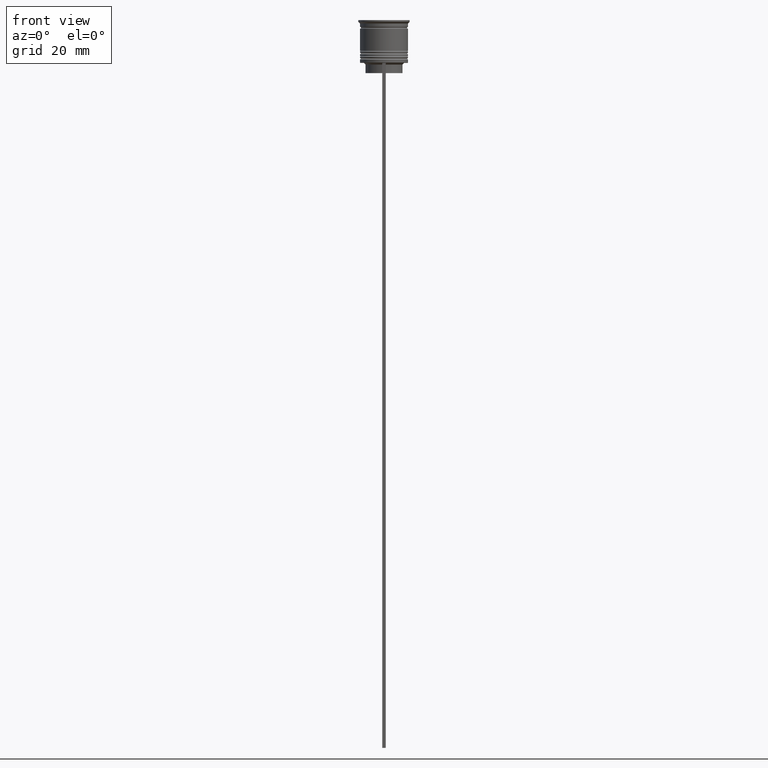
[diagram: clean part render]
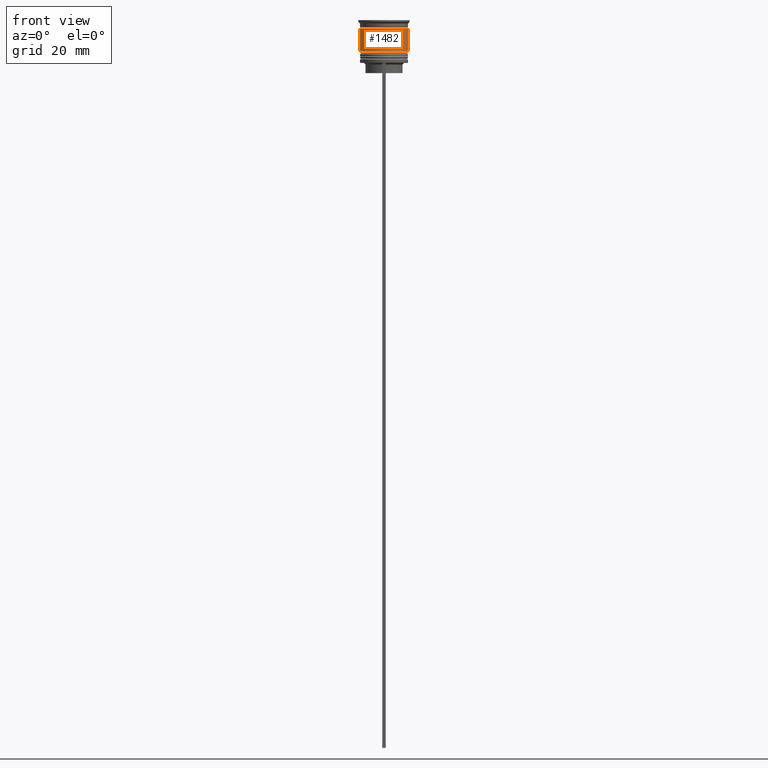
[diagram: same view with one face highlighted and labeled with its STEP entity id]
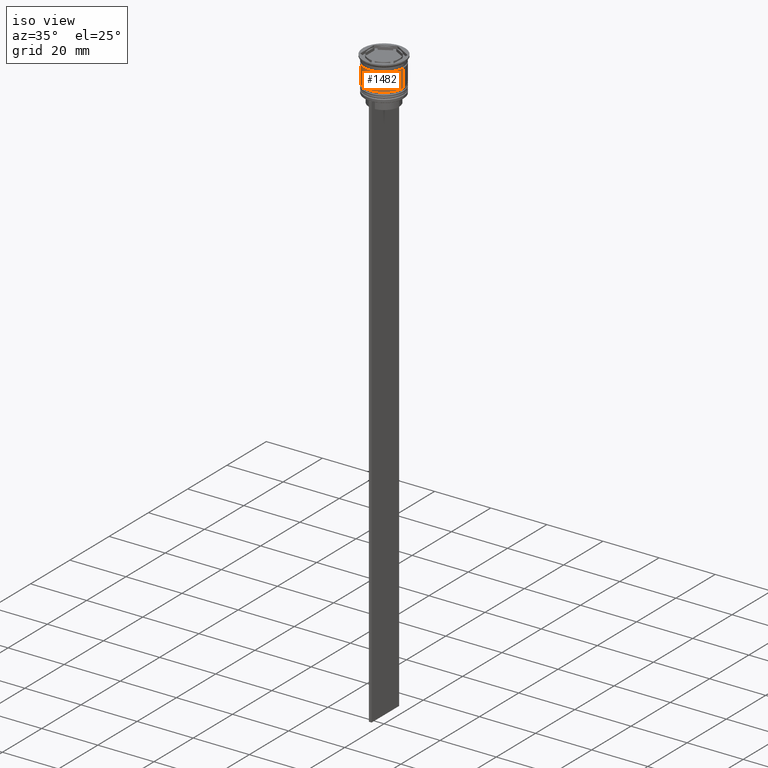
[diagram: same view with one face highlighted and labeled with its STEP entity id]
A machine part, front view. The second image highlights one B-rep face of the part: STEP entity #1482.
A second angle (iso view) of the same face is appended — the face is thin or edge-on in the first view.
In plain terms, the highlighted cylindrical surface (edge-blend (fillet) strip) has radius 7 mm, axis along (-0, -0, 1).
Its self-contained STEP definition (entity closure, byte-faithful):
#122 = VERTEX_POINT ( 'NONE', #1569 ) ;
#151 = ORIENTED_EDGE ( 'NONE', *, *, #280, .T. ) ;
#280 = EDGE_CURVE ( 'NONE', #2115, #122, #1841, .T. ) ;
#374 = DIRECTION ( 'NONE',  ( 1.000000000000000000, 0.000000000000000000, 0.000000000000000000 ) ) ;
#462 = DIRECTION ( 'NONE',  ( 1.000000000000000000, 0.000000000000000000, 0.000000000000000000 ) ) ;
#604 = CARTESIAN_POINT ( 'NONE',  ( 6.999999999999999112, 0.000000000000000000, 0.000000000000000000 ) ) ;
#636 = CIRCLE ( 'NONE', #915, 6.999999999999997335 ) ;
#672 = LINE ( 'NONE', #1047, #1260 ) ;
#715 = VECTOR ( 'NONE', #2089, 1000.000000000000000 ) ;
#737 = CARTESIAN_POINT ( 'NONE',  ( 0.000000000000000000, 0.000000000000000000, 0.000000000000000000 ) ) ;
#759 = EDGE_CURVE ( 'NONE', #2201, #122, #636, .T. ) ;
#875 = AXIS2_PLACEMENT_3D ( 'NONE', #737, #914, #1494 ) ;
#914 = DIRECTION ( 'NONE',  ( -0.000000000000000000, -0.000000000000000000, 1.000000000000000000 ) ) ;
#915 = AXIS2_PLACEMENT_3D ( 'NONE', #1363, #1578, #374 ) ;
#1046 = CARTESIAN_POINT ( 'NONE',  ( 0.000000000000000000, 0.000000000000000000, -9.000000000000001776 ) ) ;
#1047 = CARTESIAN_POINT ( 'NONE',  ( -6.999999999999999112, 8.572527594031472204E-16, 0.000000000000000000 ) ) ;
#1260 = VECTOR ( 'NONE', #2381, 1000.000000000000000 ) ;
#1347 = VERTEX_POINT ( 'NONE', #2003 ) ;
#1363 = CARTESIAN_POINT ( 'NONE',  ( 0.000000000000000000, 0.000000000000000000, -2.500000000000000444 ) ) ;
#1377 = EDGE_CURVE ( 'NONE', #1347, #2201, #672, .T. ) ;
#1383 = EDGE_LOOP ( 'NONE', ( #1721, #2323, #151, #2093 ) ) ;
#1482 = ADVANCED_FACE ( 'NONE', ( #2057 ), #1863, .T. ) ;
#1494 = DIRECTION ( 'NONE',  ( 1.000000000000000000, 0.000000000000000000, 0.000000000000000000 ) ) ;
#1569 = CARTESIAN_POINT ( 'NONE',  ( 6.999999999999997335, 0.000000000000000000, -2.500000000000000444 ) ) ;
#1571 = DIRECTION ( 'NONE',  ( -0.000000000000000000, -0.000000000000000000, 1.000000000000000000 ) ) ;
#1578 = DIRECTION ( 'NONE',  ( -0.000000000000000000, -0.000000000000000000, 1.000000000000000000 ) ) ;
#1721 = ORIENTED_EDGE ( 'NONE', *, *, #1377, .F. ) ;
#1778 = CARTESIAN_POINT ( 'NONE',  ( -6.999999999999997335, 8.572527594031471218E-16, -2.500000000000000444 ) ) ;
#1811 = EDGE_CURVE ( 'NONE', #1347, #2115, #2386, .T. ) ;
#1841 = LINE ( 'NONE', #604, #715 ) ;
#1863 = CYLINDRICAL_SURFACE ( 'NONE', #875, 6.999999999999999112 ) ;
#1864 = AXIS2_PLACEMENT_3D ( 'NONE', #1046, #1571, #462 ) ;
#2003 = CARTESIAN_POINT ( 'NONE',  ( -7.000000000000000888, 8.572527594031474176E-16, -9.000000000000001776 ) ) ;
#2057 = FACE_OUTER_BOUND ( 'NONE', #1383, .T. ) ;
#2089 = DIRECTION ( 'NONE',  ( -0.000000000000000000, -0.000000000000000000, 1.000000000000000000 ) ) ;
#2093 = ORIENTED_EDGE ( 'NONE', *, *, #759, .F. ) ;
#2115 = VERTEX_POINT ( 'NONE', #2455 ) ;
#2201 = VERTEX_POINT ( 'NONE', #1778 ) ;
#2323 = ORIENTED_EDGE ( 'NONE', *, *, #1811, .T. ) ;
#2381 = DIRECTION ( 'NONE',  ( -0.000000000000000000, -0.000000000000000000, 1.000000000000000000 ) ) ;
#2386 = CIRCLE ( 'NONE', #1864, 7.000000000000000888 ) ;
#2455 = CARTESIAN_POINT ( 'NONE',  ( 7.000000000000000888, 0.000000000000000000, -9.000000000000001776 ) ) ;